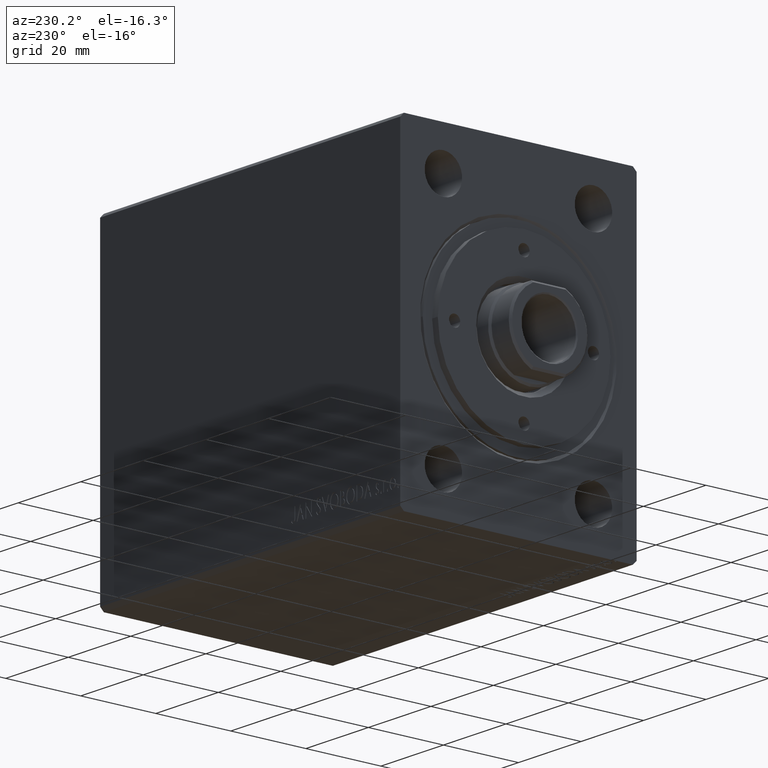
[diagram: clean part render]
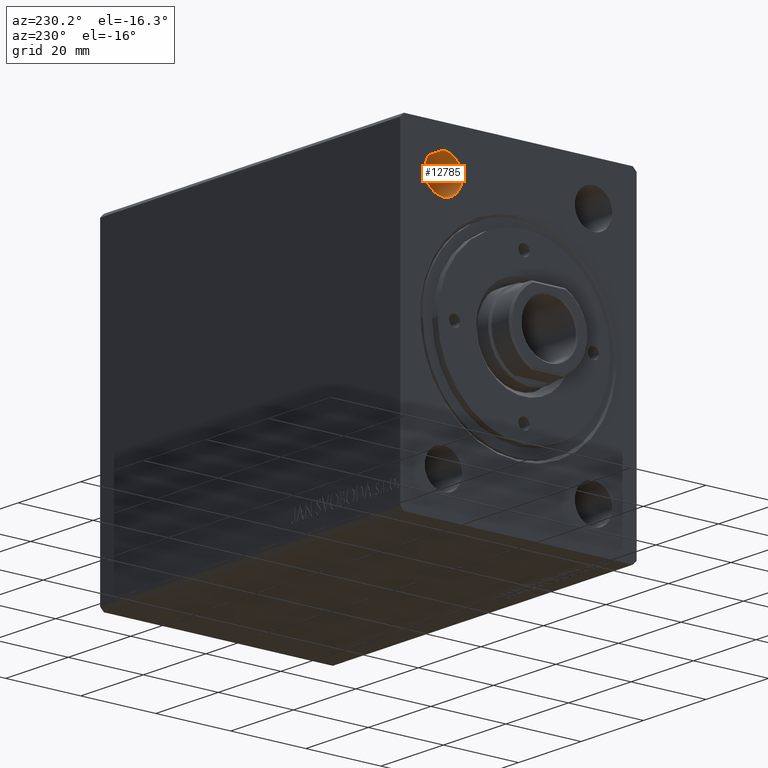
[diagram: same view with one face highlighted and labeled with its STEP entity id]
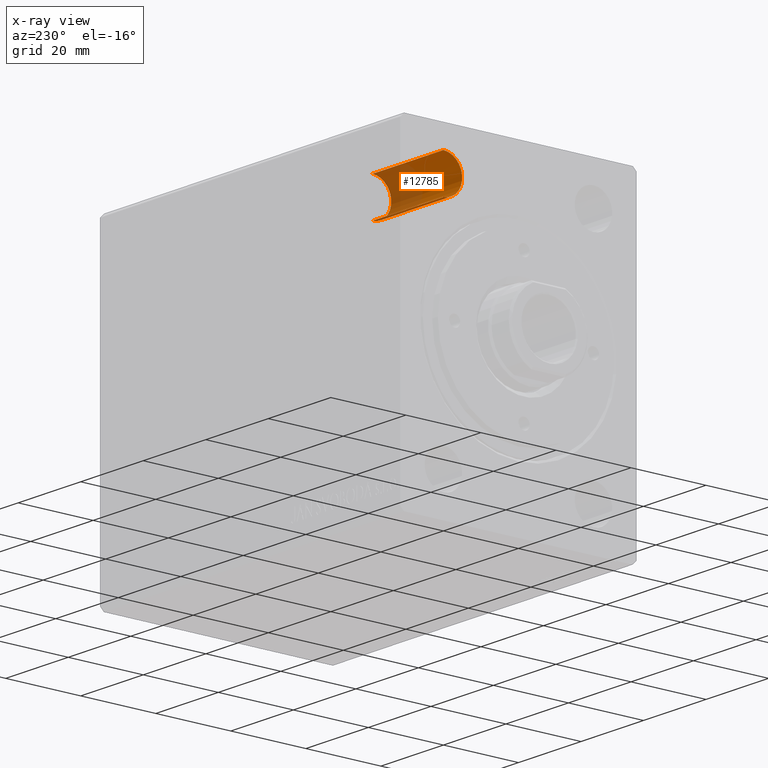
[diagram: x-ray of the same camera — body ghosted, the highlighted face saturated]
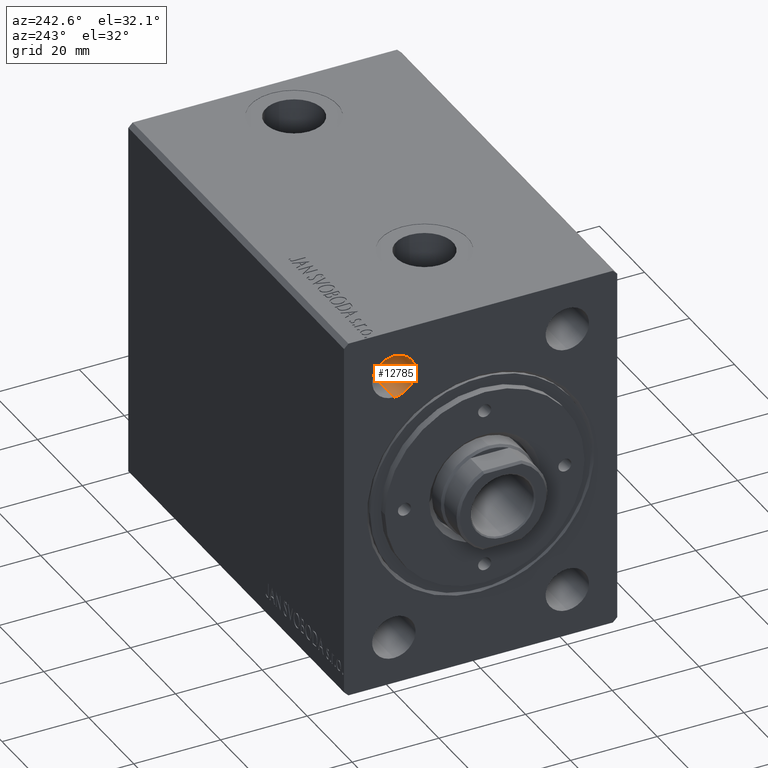
[diagram: same view with one face highlighted and labeled with its STEP entity id]
A machine part, auxiliary view. The second image highlights one B-rep face of the part: STEP entity #12785.
The next image is the same camera in x-ray: the body ghosted, the highlighted face saturated — about 44% of this face is hidden behind the body in this view.
A second angle (auxiliary view) of the same face is appended — the face is thin or edge-on in the first view.
In plain terms, the highlighted cylindrical surface (edge-blend (fillet) strip) has radius 5 mm, axis along (-1, -0, -0).
Its self-contained STEP definition (entity closure, byte-faithful):
#1507 = CARTESIAN_POINT ( 'NONE',  ( 22.67000000000000171, 19.99999999999999645, 26.50000000000000711 ) ) ;
#1937 = CARTESIAN_POINT ( 'NONE',  ( 0.000000000000000000, 19.99999999999999645, 31.50000000000000000 ) ) ;
#2109 = AXIS2_PLACEMENT_3D ( 'NONE', #9885, #23463, #6547 ) ;
#2918 = LINE ( 'NONE', #37423, #13729 ) ;
#3274 = DIRECTION ( 'NONE',  ( -1.000000000000000000, -0.000000000000000000, -0.000000000000000000 ) ) ;
#3657 = CARTESIAN_POINT ( 'NONE',  ( 1.224646799147350495E-16, 19.99999999999999645, 26.50000000000000355 ) ) ;
#4070 = AXIS2_PLACEMENT_3D ( 'NONE', #43675, #36759, #29199 ) ;
#4203 = VECTOR ( 'NONE', #3274, 1000.000000000000000 ) ;
#6547 = DIRECTION ( 'NONE',  ( 0.000000000000000000, 0.000000000000000000, 1.000000000000000000 ) ) ;
#8404 = VERTEX_POINT ( 'NONE', #15500 ) ;
#9885 = CARTESIAN_POINT ( 'NONE',  ( 22.67000000000000171, 19.99999999999999645, 31.50000000000000000 ) ) ;
#11292 = EDGE_CURVE ( 'NONE', #21547, #17772, #2918, .T. ) ;
#11956 = FACE_OUTER_BOUND ( 'NONE', #25461, .T. ) ;
#12785 = ADVANCED_FACE ( 'NONE', ( #11956 ), #39118, .F. ) ;
#13729 = VECTOR ( 'NONE', #30077, 1000.000000000000000 ) ;
#14840 = EDGE_CURVE ( 'NONE', #15726, #8404, #34207, .T. ) ;
#15500 = CARTESIAN_POINT ( 'NONE',  ( 1.224646799147350495E-16, 19.99999999999999645, 36.50000000000000000 ) ) ;
#15519 = DIRECTION ( 'NONE',  ( -1.000000000000000000, -0.000000000000000000, -0.000000000000000000 ) ) ;
#15726 = VERTEX_POINT ( 'NONE', #27514 ) ;
#16160 = EDGE_CURVE ( 'NONE', #21547, #15726, #17016, .T. ) ;
#17016 = CIRCLE ( 'NONE', #2109, 4.999999999999990230 ) ;
#17772 = VERTEX_POINT ( 'NONE', #3657 ) ;
#21547 = VERTEX_POINT ( 'NONE', #1507 ) ;
#23463 = DIRECTION ( 'NONE',  ( -1.000000000000000000, -0.000000000000000000, -0.000000000000000000 ) ) ;
#23972 = CIRCLE ( 'NONE', #4070, 4.999999999999997335 ) ;
#25461 = EDGE_LOOP ( 'NONE', ( #33059, #38794, #33363, #33262 ) ) ;
#26873 = CARTESIAN_POINT ( 'NONE',  ( 0.000000000000000000, 19.99999999999999645, 36.50000000000000000 ) ) ;
#27514 = CARTESIAN_POINT ( 'NONE',  ( 22.67000000000000171, 19.99999999999999645, 36.49999999999999289 ) ) ;
#29099 = DIRECTION ( 'NONE',  ( 0.000000000000000000, 0.000000000000000000, 1.000000000000000000 ) ) ;
#29199 = DIRECTION ( 'NONE',  ( 0.000000000000000000, 0.000000000000000000, 1.000000000000000000 ) ) ;
#30077 = DIRECTION ( 'NONE',  ( -1.000000000000000000, -0.000000000000000000, -0.000000000000000000 ) ) ;
#33059 = ORIENTED_EDGE ( 'NONE', *, *, #16160, .F. ) ;
#33262 = ORIENTED_EDGE ( 'NONE', *, *, #14840, .F. ) ;
#33363 = ORIENTED_EDGE ( 'NONE', *, *, #42637, .T. ) ;
#34207 = LINE ( 'NONE', #26873, #4203 ) ;
#36759 = DIRECTION ( 'NONE',  ( -1.000000000000000000, -0.000000000000000000, -0.000000000000000000 ) ) ;
#37423 = CARTESIAN_POINT ( 'NONE',  ( 0.000000000000000000, 19.99999999999999645, 26.50000000000000355 ) ) ;
#38794 = ORIENTED_EDGE ( 'NONE', *, *, #11292, .T. ) ;
#39118 = CYLINDRICAL_SURFACE ( 'NONE', #40794, 4.999999999999997335 ) ;
#40794 = AXIS2_PLACEMENT_3D ( 'NONE', #1937, #15519, #29099 ) ;
#42637 = EDGE_CURVE ( 'NONE', #17772, #8404, #23972, .T. ) ;
#43675 = CARTESIAN_POINT ( 'NONE',  ( 1.224646799147350495E-16, 19.99999999999999645, 31.50000000000000000 ) ) ;